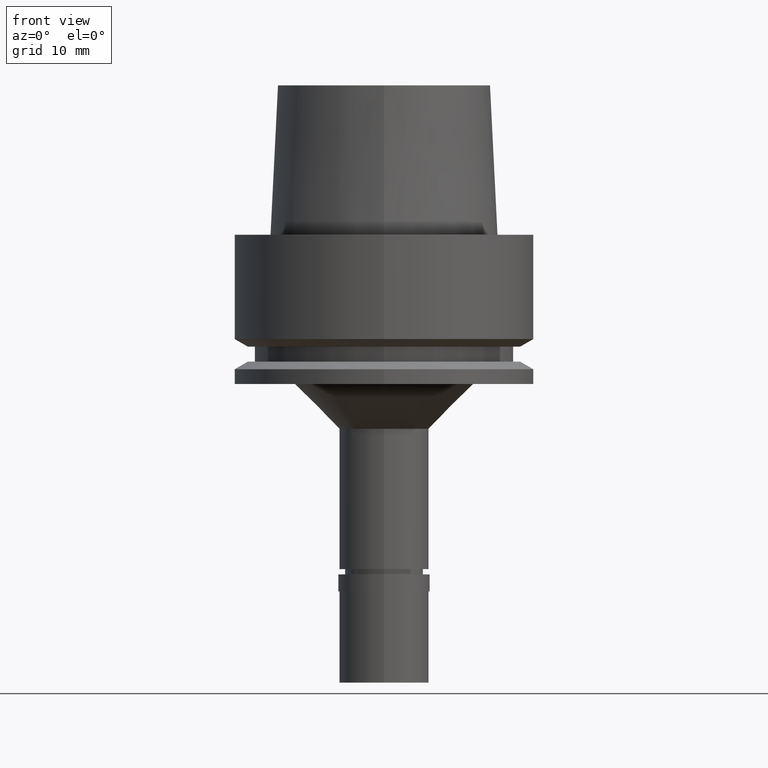
[diagram: clean part render]
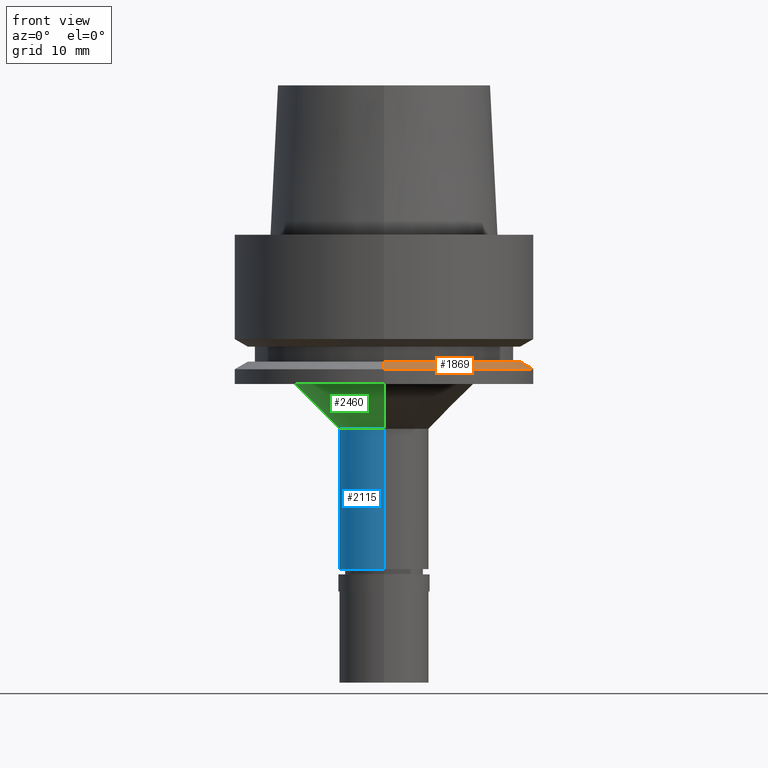
[diagram: same view with three faces highlighted in distinct colors, each labeled with its STEP entity id]
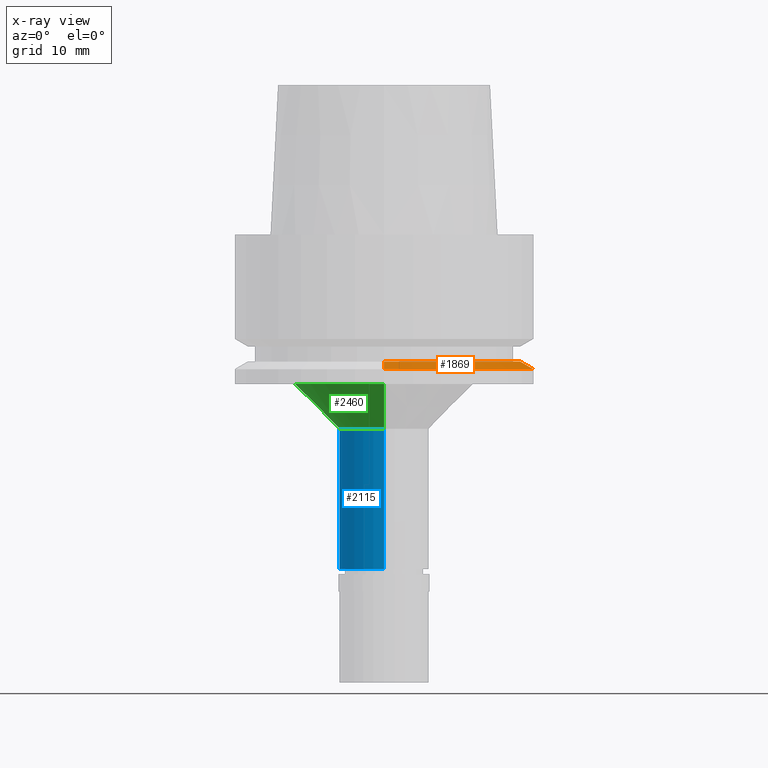
[diagram: x-ray of the same camera — body ghosted, the three highlighted faces saturated]
A machine part, front view with three faces highlighted in distinct colors.
The next image is the same camera in x-ray (body ghosted, the three faces saturated) — at least one of them is partly hidden behind the body in this view.
Their STEP definitions:

[orange] entity #1869 — the highlighted conical surface has half-angle 60 deg.
#88 = AXIS2_PLACEMENT_3D ( 'NONE', #2464, #2206, #604 ) ;
#142 = DIRECTION ( 'NONE',  ( 0.0000000000000000000, 0.0000000000000000000, -1.000000000000000000 ) ) ;
#150 = DIRECTION ( 'NONE',  ( 0.0000000000000000000, 0.8660254037841628172, -0.5000000000004778400 ) ) ;
#283 = DIRECTION ( 'NONE',  ( 0.0000000000000000000, 0.0000000000000000000, -1.000000000000000000 ) ) ;
#299 = ORIENTED_EDGE ( 'NONE', *, *, #2299, .T. ) ;
#407 = EDGE_CURVE ( 'NONE', #2581, #2117, #2278, .T. ) ;
#409 = AXIS2_PLACEMENT_3D ( 'NONE', #864, #283, #2103 ) ;
#454 = VECTOR ( 'NONE', #2626, 999.9999999999998863 ) ;
#495 = VERTEX_POINT ( 'NONE', #1001 ) ;
#530 = CONICAL_SURFACE ( 'NONE', #409, 19.11602540165999997, 1.047197551196400456 ) ;
#604 = DIRECTION ( 'NONE',  ( 0.0000000000000000000, 1.000000000000000000, 0.0000000000000000000 ) ) ;
#665 = AXIS2_PLACEMENT_3D ( 'NONE', #2011, #142, #987 ) ;
#701 = CIRCLE ( 'NONE', #88, 18.23205080331999994 ) ;
#770 = EDGE_CURVE ( 'NONE', #781, #2117, #2436, .T. ) ;
#781 = VERTEX_POINT ( 'NONE', #2653 ) ;
#854 = EDGE_CURVE ( 'NONE', #495, #2581, #2016, .T. ) ;
#864 = CARTESIAN_POINT ( 'NONE',  ( 0.0000000000000000000, 0.0000000000000000000, -17.51036297230999850 ) ) ;
#987 = DIRECTION ( 'NONE',  ( 0.0000000000000000000, 1.000000000000000000, 0.0000000000000000000 ) ) ;
#1001 = CARTESIAN_POINT ( 'NONE',  ( 0.0000000000000000000, 18.23205080331999994, -17.00000000000000000 ) ) ;
#1100 = CARTESIAN_POINT ( 'NONE',  ( 0.0000000000000000000, -20.00000000000000000, -18.02072594461999699 ) ) ;
#1321 = FACE_OUTER_BOUND ( 'NONE', #2339, .T. ) ;
#1386 = CARTESIAN_POINT ( 'NONE',  ( 0.0000000000000000000, -18.23205080331999994, -17.00000000000000000 ) ) ;
#1399 = ORIENTED_EDGE ( 'NONE', *, *, #407, .F. ) ;
#1501 = VECTOR ( 'NONE', #150, 999.9999999999998863 ) ;
#1821 = CARTESIAN_POINT ( 'NONE',  ( 0.0000000000000000000, 18.23205080331999994, -17.00000000000000000 ) ) ;
#1869 = ADVANCED_FACE ( 'NONE', ( #1321 ), #530, .T. ) ;
#2011 = CARTESIAN_POINT ( 'NONE',  ( 0.0000000000000000000, 0.0000000000000000000, -18.02072594461999699 ) ) ;
#2016 = LINE ( 'NONE', #1821, #1501 ) ;
#2082 = CARTESIAN_POINT ( 'NONE',  ( 0.0000000000000000000, 20.00000000000000000, -18.02072594461999699 ) ) ;
#2103 = DIRECTION ( 'NONE',  ( 0.0000000000000000000, -1.000000000000000000, 0.0000000000000000000 ) ) ;
#2117 = VERTEX_POINT ( 'NONE', #1100 ) ;
#2206 = DIRECTION ( 'NONE',  ( 0.0000000000000000000, 0.0000000000000000000, -1.000000000000000000 ) ) ;
#2278 = CIRCLE ( 'NONE', #665, 20.00000000000000000 ) ;
#2299 = EDGE_CURVE ( 'NONE', #495, #781, #701, .T. ) ;
#2339 = EDGE_LOOP ( 'NONE', ( #299, #2344, #1399, #2598 ) ) ;
#2344 = ORIENTED_EDGE ( 'NONE', *, *, #770, .T. ) ;
#2436 = LINE ( 'NONE', #1386, #454 ) ;
#2464 = CARTESIAN_POINT ( 'NONE',  ( 0.0000000000000000000, 0.0000000000000000000, -17.00000000000000000 ) ) ;
#2581 = VERTEX_POINT ( 'NONE', #2082 ) ;
#2598 = ORIENTED_EDGE ( 'NONE', *, *, #854, .F. ) ;
#2626 = DIRECTION ( 'NONE',  ( 0.0000000000000000000, -0.8660254037841628172, -0.5000000000004778400 ) ) ;
#2653 = CARTESIAN_POINT ( 'NONE',  ( 0.0000000000000000000, -18.23205080331999994, -17.00000000000000000 ) ) ;

[blue] entity #2115 — the highlighted cylindrical surface (partial cylindrical patch) has radius 6 mm, axis along (0, 0, 1).
#60 = ORIENTED_EDGE ( 'NONE', *, *, #621, .T. ) ;
#92 = CARTESIAN_POINT ( 'NONE',  ( 0.0000000000000000000, 6.000000000000000000, -26.00000000000000000 ) ) ;
#232 = DIRECTION ( 'NONE',  ( 0.0000000000000000000, -1.000000000000000000, 0.0000000000000000000 ) ) ;
#259 = ORIENTED_EDGE ( 'NONE', *, *, #1334, .T. ) ;
#343 = CARTESIAN_POINT ( 'NONE',  ( 0.0000000000000000000, 0.0000000000000000000, -44.79999999999999716 ) ) ;
#370 = CARTESIAN_POINT ( 'NONE',  ( 0.0000000000000000000, 6.000000000000000000, -26.00000000000000000 ) ) ;
#397 = DIRECTION ( 'NONE',  ( 0.0000000000000000000, 0.0000000000000000000, -1.000000000000000000 ) ) ;
#472 = EDGE_CURVE ( 'NONE', #966, #901, #2459, .T. ) ;
#621 = EDGE_CURVE ( 'NONE', #2606, #2214, #2252, .T. ) ;
#627 = CIRCLE ( 'NONE', #1253, 6.000000000000000000 ) ;
#758 = ORIENTED_EDGE ( 'NONE', *, *, #1088, .T. ) ;
#843 = AXIS2_PLACEMENT_3D ( 'NONE', #1307, #1712, #2574 ) ;
#856 = VECTOR ( 'NONE', #397, 1000.000000000000000 ) ;
#901 = VERTEX_POINT ( 'NONE', #1777 ) ;
#966 = VERTEX_POINT ( 'NONE', #1833 ) ;
#1036 = CARTESIAN_POINT ( 'NONE',  ( 0.0000000000000000000, 0.0000000000000000000, -26.00000000000000000 ) ) ;
#1088 = EDGE_CURVE ( 'NONE', #966, #2606, #2105, .T. ) ;
#1253 = AXIS2_PLACEMENT_3D ( 'NONE', #343, #1585, #1996 ) ;
#1307 = CARTESIAN_POINT ( 'NONE',  ( 0.0000000000000000000, 0.0000000000000000000, -59.79999999999999716 ) ) ;
#1334 = EDGE_CURVE ( 'NONE', #2214, #901, #627, .T. ) ;
#1338 = CARTESIAN_POINT ( 'NONE',  ( 0.0000000000000000000, 6.000000000000000000, -44.79999999999999716 ) ) ;
#1585 = DIRECTION ( 'NONE',  ( 0.0000000000000000000, 0.0000000000000000000, 1.000000000000000000 ) ) ;
#1676 = AXIS2_PLACEMENT_3D ( 'NONE', #1036, #2095, #232 ) ;
#1712 = DIRECTION ( 'NONE',  ( 0.0000000000000000000, 0.0000000000000000000, 1.000000000000000000 ) ) ;
#1723 = ORIENTED_EDGE ( 'NONE', *, *, #472, .F. ) ;
#1753 = FACE_OUTER_BOUND ( 'NONE', #1873, .T. ) ;
#1777 = CARTESIAN_POINT ( 'NONE',  ( 0.0000000000000000000, -6.000000000000000000, -44.79999999999999716 ) ) ;
#1833 = CARTESIAN_POINT ( 'NONE',  ( 0.0000000000000000000, -6.000000000000000000, -26.00000000000000000 ) ) ;
#1873 = EDGE_LOOP ( 'NONE', ( #259, #1723, #758, #60 ) ) ;
#1996 = DIRECTION ( 'NONE',  ( 0.0000000000000000000, 1.000000000000000000, 0.0000000000000000000 ) ) ;
#2095 = DIRECTION ( 'NONE',  ( 0.0000000000000000000, 0.0000000000000000000, -1.000000000000000000 ) ) ;
#2105 = CIRCLE ( 'NONE', #1676, 6.000000000000000000 ) ;
#2115 = ADVANCED_FACE ( 'NONE', ( #1753 ), #2374, .T. ) ;
#2214 = VERTEX_POINT ( 'NONE', #1338 ) ;
#2230 = CARTESIAN_POINT ( 'NONE',  ( 0.0000000000000000000, -6.000000000000000000, -26.00000000000000000 ) ) ;
#2252 = LINE ( 'NONE', #370, #2363 ) ;
#2363 = VECTOR ( 'NONE', #2677, 1000.000000000000000 ) ;
#2374 = CYLINDRICAL_SURFACE ( 'NONE', #843, 6.000000000000000000 ) ;
#2459 = LINE ( 'NONE', #2230, #856 ) ;
#2574 = DIRECTION ( 'NONE',  ( 0.0000000000000000000, 1.000000000000000000, 0.0000000000000000000 ) ) ;
#2606 = VERTEX_POINT ( 'NONE', #92 ) ;
#2677 = DIRECTION ( 'NONE',  ( 0.0000000000000000000, 0.0000000000000000000, -1.000000000000000000 ) ) ;

[green] entity #2460 — the highlighted conical surface has half-angle 45 deg.
#92 = CARTESIAN_POINT ( 'NONE',  ( 0.0000000000000000000, 6.000000000000000000, -26.00000000000000000 ) ) ;
#138 = EDGE_LOOP ( 'NONE', ( #1635, #1156, #961, #1746 ) ) ;
#184 = VECTOR ( 'NONE', #1552, 1000.000000000000114 ) ;
#232 = DIRECTION ( 'NONE',  ( 0.0000000000000000000, -1.000000000000000000, 0.0000000000000000000 ) ) ;
#479 = EDGE_CURVE ( 'NONE', #2556, #2606, #868, .T. ) ;
#512 = CARTESIAN_POINT ( 'NONE',  ( 0.0000000000000000000, -12.00000000000000000, -20.00000000000000000 ) ) ;
#786 = CARTESIAN_POINT ( 'NONE',  ( 0.0000000000000000000, 0.0000000000000000000, -23.00000000000000000 ) ) ;
#868 = LINE ( 'NONE', #1294, #1545 ) ;
#961 = ORIENTED_EDGE ( 'NONE', *, *, #1267, .T. ) ;
#966 = VERTEX_POINT ( 'NONE', #1833 ) ;
#1036 = CARTESIAN_POINT ( 'NONE',  ( 0.0000000000000000000, 0.0000000000000000000, -26.00000000000000000 ) ) ;
#1053 = CARTESIAN_POINT ( 'NONE',  ( 0.0000000000000000000, 12.00000000000000000, -20.00000000000000000 ) ) ;
#1088 = EDGE_CURVE ( 'NONE', #966, #2606, #2105, .T. ) ;
#1156 = ORIENTED_EDGE ( 'NONE', *, *, #2178, .F. ) ;
#1168 = DIRECTION ( 'NONE',  ( 0.0000000000000000000, 0.0000000000000000000, -1.000000000000000000 ) ) ;
#1265 = CARTESIAN_POINT ( 'NONE',  ( 0.0000000000000000000, -12.00000000000000000, -20.00000000000000000 ) ) ;
#1267 = EDGE_CURVE ( 'NONE', #2577, #2556, #2320, .T. ) ;
#1294 = CARTESIAN_POINT ( 'NONE',  ( 0.0000000000000000000, 12.00000000000000000, -20.00000000000000000 ) ) ;
#1367 = CARTESIAN_POINT ( 'NONE',  ( 0.0000000000000000000, 0.0000000000000000000, -20.00000000000000000 ) ) ;
#1545 = VECTOR ( 'NONE', #1692, 1000.000000000000114 ) ;
#1552 = DIRECTION ( 'NONE',  ( 0.0000000000000000000, 0.7071067811865474617, -0.7071067811865474617 ) ) ;
#1583 = CONICAL_SURFACE ( 'NONE', #2136, 9.000000000000000000, 0.7853981633972997312 ) ;
#1635 = ORIENTED_EDGE ( 'NONE', *, *, #1088, .F. ) ;
#1676 = AXIS2_PLACEMENT_3D ( 'NONE', #1036, #2095, #232 ) ;
#1692 = DIRECTION ( 'NONE',  ( 0.0000000000000000000, -0.7071067811865474617, -0.7071067811865474617 ) ) ;
#1746 = ORIENTED_EDGE ( 'NONE', *, *, #479, .T. ) ;
#1806 = FACE_OUTER_BOUND ( 'NONE', #138, .T. ) ;
#1833 = CARTESIAN_POINT ( 'NONE',  ( 0.0000000000000000000, -6.000000000000000000, -26.00000000000000000 ) ) ;
#1913 = LINE ( 'NONE', #512, #184 ) ;
#2095 = DIRECTION ( 'NONE',  ( 0.0000000000000000000, 0.0000000000000000000, -1.000000000000000000 ) ) ;
#2105 = CIRCLE ( 'NONE', #1676, 6.000000000000000000 ) ;
#2136 = AXIS2_PLACEMENT_3D ( 'NONE', #786, #2644, #2221 ) ;
#2178 = EDGE_CURVE ( 'NONE', #2577, #966, #1913, .T. ) ;
#2221 = DIRECTION ( 'NONE',  ( 0.0000000000000000000, 1.000000000000000000, 0.0000000000000000000 ) ) ;
#2239 = AXIS2_PLACEMENT_3D ( 'NONE', #1367, #1168, #2419 ) ;
#2320 = CIRCLE ( 'NONE', #2239, 12.00000000000000000 ) ;
#2419 = DIRECTION ( 'NONE',  ( 0.0000000000000000000, -1.000000000000000000, 0.0000000000000000000 ) ) ;
#2460 = ADVANCED_FACE ( 'NONE', ( #1806 ), #1583, .T. ) ;
#2556 = VERTEX_POINT ( 'NONE', #1053 ) ;
#2577 = VERTEX_POINT ( 'NONE', #1265 ) ;
#2606 = VERTEX_POINT ( 'NONE', #92 ) ;
#2644 = DIRECTION ( 'NONE',  ( 0.0000000000000000000, 0.0000000000000000000, 1.000000000000000000 ) ) ;